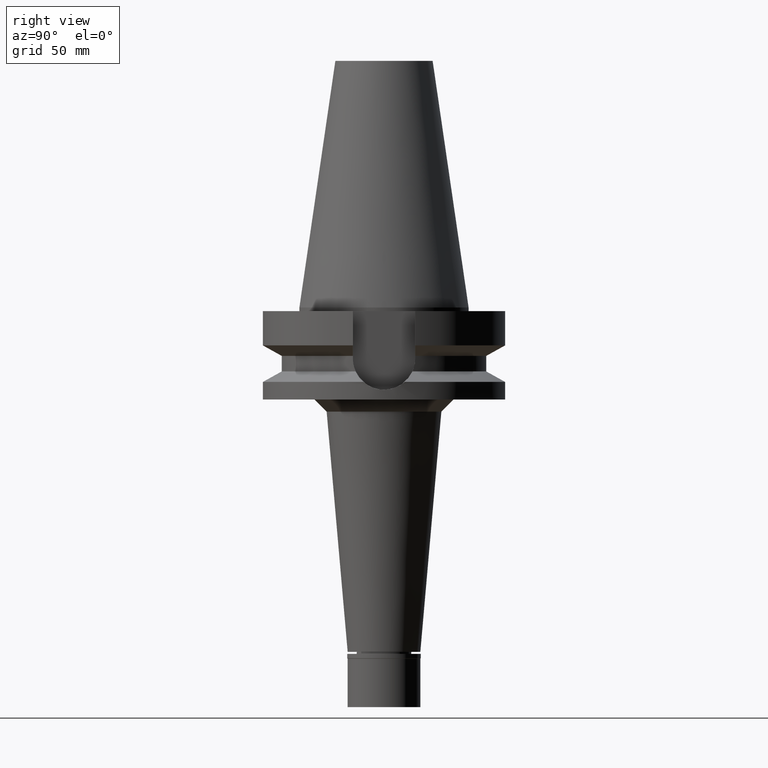
[diagram: clean part render]
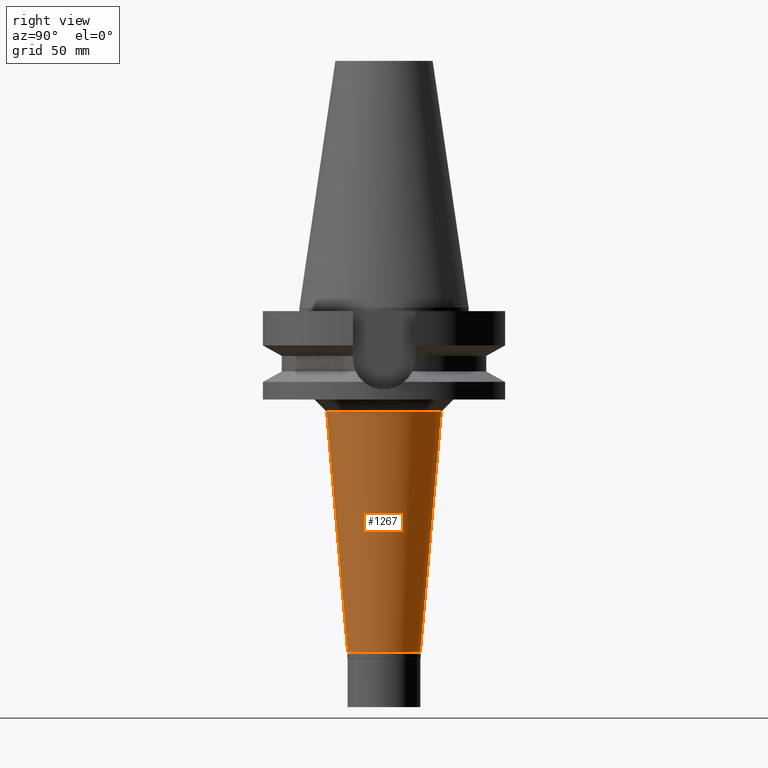
[diagram: same view with one face highlighted and labeled with its STEP entity id]
A machine part, right view. The second image highlights one B-rep face of the part: STEP entity #1267.
In plain terms, the highlighted conical surface has half-angle 5 deg.
Its self-contained STEP definition (entity closure, byte-faithful):
#25 = AXIS2_PLACEMENT_3D ( 'NONE', #1930, #1754, #2473 ) ;
#87 = CARTESIAN_POINT ( 'NONE',  ( 0.0000000000000000000, 0.0000000000000000000, -43.00000000000000000 ) ) ;
#131 = CARTESIAN_POINT ( 'NONE',  ( 0.0000000000000000000, -15.00000000000000000, -142.1999999999999886 ) ) ;
#274 = CONICAL_SURFACE ( 'NONE', #429, 19.33943771088999952, 0.08726646259969973729 ) ;
#322 = CIRCLE ( 'NONE', #25, 15.00000000000000000 ) ;
#398 = CARTESIAN_POINT ( 'NONE',  ( 0.0000000000000000000, 23.67887542176999816, -43.00000000000000000 ) ) ;
#406 = DIRECTION ( 'NONE',  ( 0.0000000000000000000, 0.08715574274764407992, -0.9961946980917467664 ) ) ;
#429 = AXIS2_PLACEMENT_3D ( 'NONE', #1693, #2679, #1498 ) ;
#457 = EDGE_CURVE ( 'NONE', #1703, #2061, #2130, .T. ) ;
#750 = VECTOR ( 'NONE', #406, 1000.000000000000114 ) ;
#807 = DIRECTION ( 'NONE',  ( 0.0000000000000000000, 0.0000000000000000000, 1.000000000000000000 ) ) ;
#847 = DIRECTION ( 'NONE',  ( 0.0000000000000000000, -0.08715574274764407992, -0.9961946980917467664 ) ) ;
#1235 = EDGE_CURVE ( 'NONE', #3179, #2061, #322, .T. ) ;
#1267 = ADVANCED_FACE ( 'NONE', ( #2246 ), #274, .T. ) ;
#1459 = ORIENTED_EDGE ( 'NONE', *, *, #457, .F. ) ;
#1461 = VECTOR ( 'NONE', #847, 1000.000000000000114 ) ;
#1498 = DIRECTION ( 'NONE',  ( 0.0000000000000000000, 1.000000000000000000, 0.0000000000000000000 ) ) ;
#1644 = LINE ( 'NONE', #2632, #750 ) ;
#1693 = CARTESIAN_POINT ( 'NONE',  ( 0.0000000000000000000, 0.0000000000000000000, -92.60000000000000853 ) ) ;
#1703 = VERTEX_POINT ( 'NONE', #398 ) ;
#1754 = DIRECTION ( 'NONE',  ( 0.0000000000000000000, 0.0000000000000000000, 1.000000000000000000 ) ) ;
#1811 = ORIENTED_EDGE ( 'NONE', *, *, #2752, .T. ) ;
#1881 = CARTESIAN_POINT ( 'NONE',  ( 0.0000000000000000000, -23.67887542176999816, -43.00000000000000000 ) ) ;
#1930 = CARTESIAN_POINT ( 'NONE',  ( 0.0000000000000000000, 0.0000000000000000000, -142.1999999999999886 ) ) ;
#2061 = VERTEX_POINT ( 'NONE', #2361 ) ;
#2098 = VERTEX_POINT ( 'NONE', #1881 ) ;
#2130 = LINE ( 'NONE', #2371, #1461 ) ;
#2196 = ORIENTED_EDGE ( 'NONE', *, *, #3133, .F. ) ;
#2246 = FACE_OUTER_BOUND ( 'NONE', #2375, .T. ) ;
#2361 = CARTESIAN_POINT ( 'NONE',  ( 0.0000000000000000000, 15.00000000000000000, -142.1999999999999886 ) ) ;
#2371 = CARTESIAN_POINT ( 'NONE',  ( 0.0000000000000000000, 23.67887542176999816, -43.00000000000000000 ) ) ;
#2375 = EDGE_LOOP ( 'NONE', ( #2196, #1811, #2636, #1459 ) ) ;
#2473 = DIRECTION ( 'NONE',  ( 0.0000000000000000000, -1.000000000000000000, 0.0000000000000000000 ) ) ;
#2506 = CIRCLE ( 'NONE', #2917, 23.67887542178000260 ) ;
#2544 = DIRECTION ( 'NONE',  ( 0.0000000000000000000, -1.000000000000000000, 0.0000000000000000000 ) ) ;
#2632 = CARTESIAN_POINT ( 'NONE',  ( 0.0000000000000000000, -23.67887542176999816, -43.00000000000000000 ) ) ;
#2636 = ORIENTED_EDGE ( 'NONE', *, *, #1235, .T. ) ;
#2679 = DIRECTION ( 'NONE',  ( 0.0000000000000000000, 0.0000000000000000000, 1.000000000000000000 ) ) ;
#2752 = EDGE_CURVE ( 'NONE', #2098, #3179, #1644, .T. ) ;
#2917 = AXIS2_PLACEMENT_3D ( 'NONE', #87, #807, #2544 ) ;
#3133 = EDGE_CURVE ( 'NONE', #2098, #1703, #2506, .T. ) ;
#3179 = VERTEX_POINT ( 'NONE', #131 ) ;